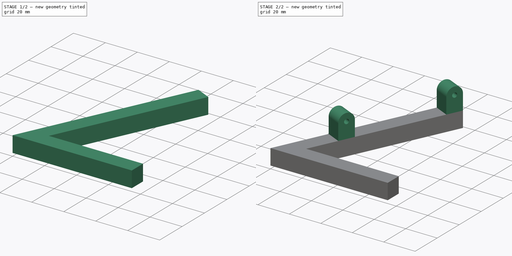
[diagram: build sequence overview — one tinted view per stage of 2, left to right]
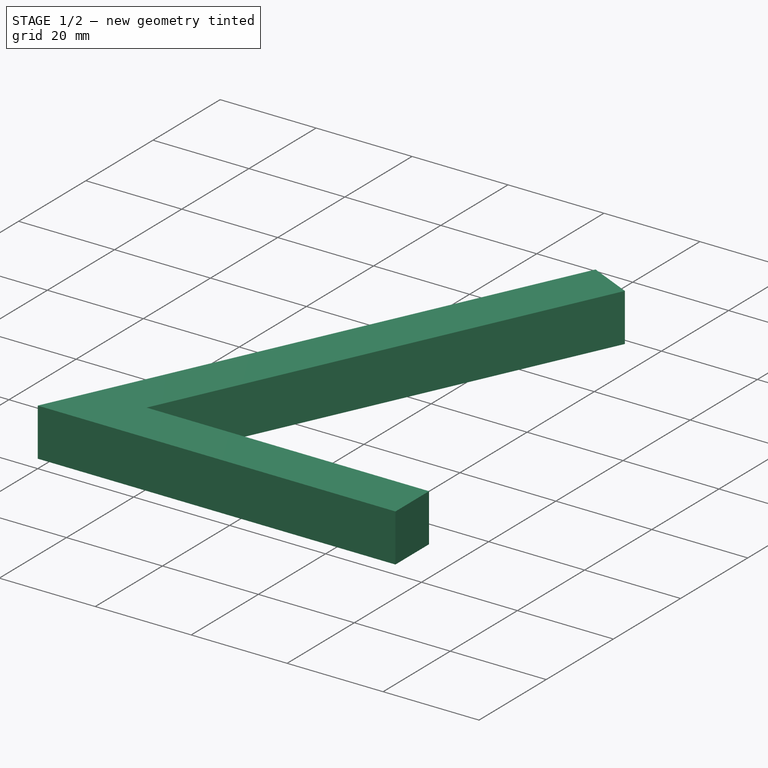
[diagram: stage 1 of 2 — iso view after this stage's code; geometry added in this stage tinted green]
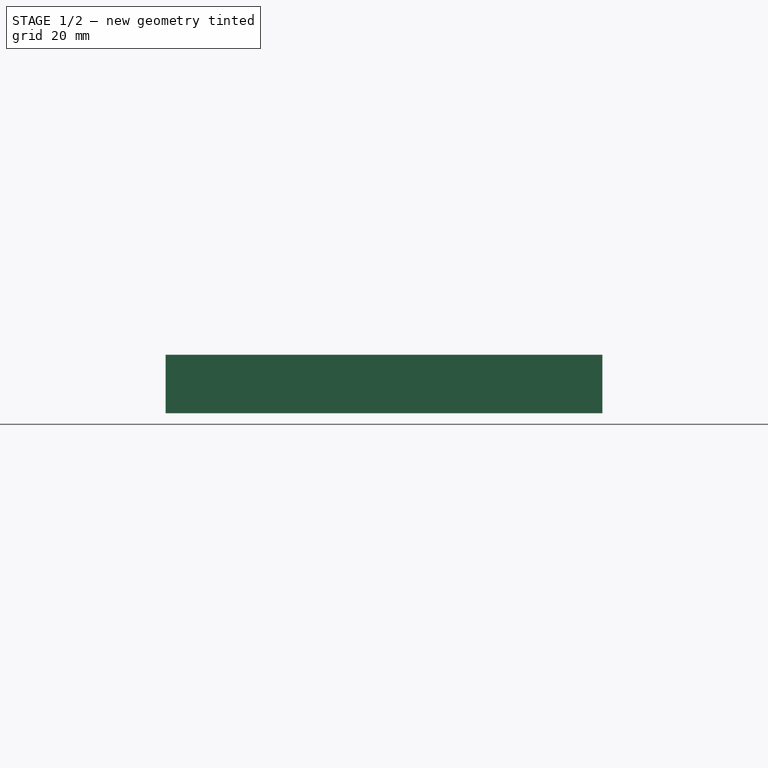
[diagram: stage 1 of 2 — front view after this stage's code; geometry added in this stage tinted green]
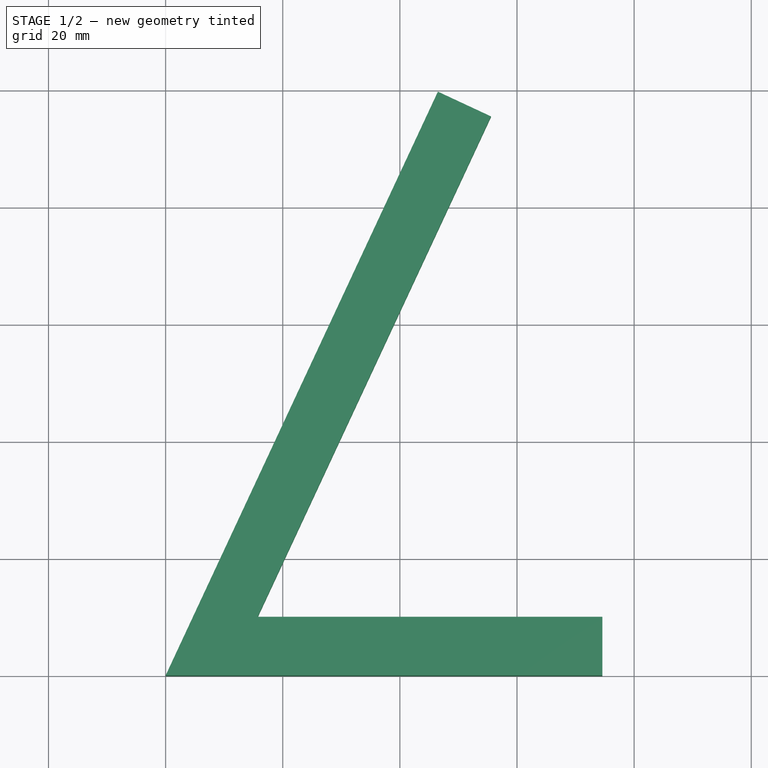
[diagram: stage 1 of 2 — top view after this stage's code; geometry added in this stage tinted green]
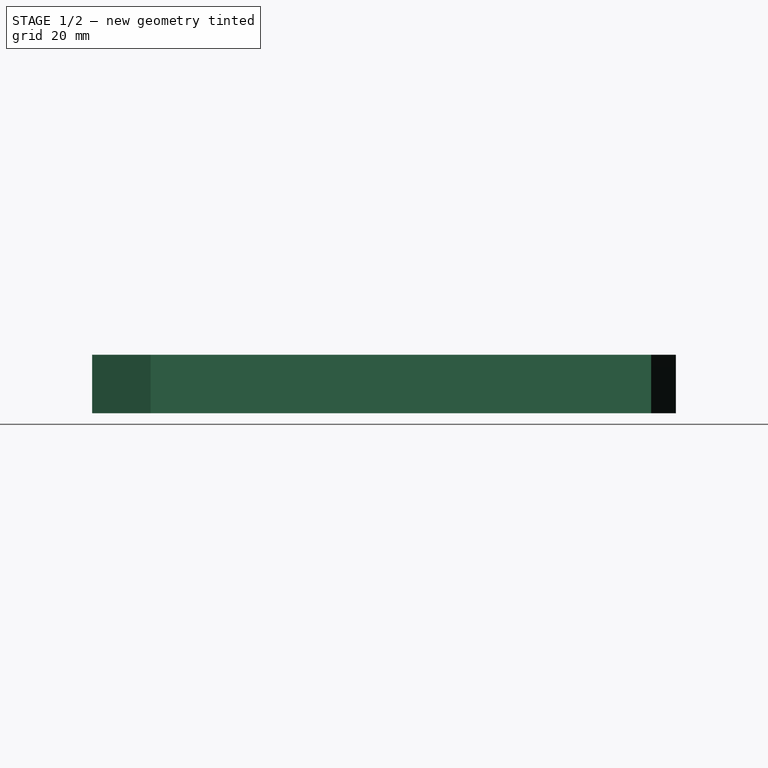
[diagram: stage 1 of 2 — right view after this stage's code; geometry added in this stage tinted green]
FCSTD DOCUMENT  (FreeCAD 0.20R)
Label: 10inch_screen_legs
License: All rights reserved
LicenseURL: http://en.wikipedia.org/wiki/All_rights_reserved
objects: Sketcher::SketchObject×2, PartDesign::Pad×2, PartDesign::Body×1
note: 7 computed .brp shape members not serialized (recipe doc carries the construction recipe); baked Part::Feature solids carry a one-line shape summary decoded from their .brp

FEATURE [Sketcher::SketchObject] Sketch
  FullyConstrained = false
  MapMode = 5
  Support = -> [XY_Plane]
  sketch-geometry (11):
    g0: LineSegment StartX=74.5689 StartY=0 StartZ=0 EndX=0 EndY=0 EndZ=0
    g1: LineSegment StartX=0 StartY=0 StartZ=0 EndX=46.488 EndY=99.6939 EndZ=0
    g2: LineSegment StartX=46.488 StartY=99.6939 StartZ=0 EndX=55.5511 EndY=95.4677 EndZ=0
    g3: LineSegment StartX=55.5511 StartY=95.4677 StartZ=0 EndX=15.6969 EndY=10 EndZ=0
    g4: LineSegment StartX=15.6969 StartY=10 StartZ=0 EndX=74.5689 EndY=10 EndZ=0
    g5: LineSegment StartX=74.5689 StartY=10 StartZ=0 EndX=74.5689 EndY=0 EndZ=0
    g6: LineSegment StartX=-12.562 StartY=55.5098 StartZ=0 EndX=14.9082 EndY=114.42 EndZ=0
    g7: LineSegment StartX=0 StartY=0 StartZ=0 EndX=-31.5798 EndY=14.7259 EndZ=0
    g8: LineSegment StartX=-31.5798 StartY=14.7259 StartZ=0 EndX=-12.562 EndY=55.5098 EndZ=0
    g9: LineSegment StartX=55.5511 StartY=95.4677 StartZ=0 EndX=74.5689 EndY=136.252 EndZ=0
    g10: LineSegment StartX=74.5689 StartY=136.252 StartZ=0 EndX=74.5689 EndY=10 EndZ=0
  constraints (30):
    c: PointOnObject(g0,g-1)
    c: Coincident(g0,g-1)
    c: Coincident(g1,g0)
    c: Coincident(g2,g1)
    c: Coincident(g3,g2)
    c: Coincident(g4,g3)
    c: Horizontal(g4)
    c: Coincident(g5,g4)
    c: Coincident(g5,g0)
    c: Vertical(g5)
    c: Perpendicular(g2,g1)
    c: Parallel(g1,g3)
    c: Equal(g2,g5)
    c: Angle(g4,g3) = 1.13446
    c: Distance(g5) = 10
    c: Distance(g1) = 110
    c: Distance(g6) = 65
    c: Parallel(g1,g6)
    c: PointOnObject(g6,g2)
    c: Coincident(g7,g0)
    c: Perpendicular(g1,g7)
    c: Coincident(g8,g7)
    c: Coincident(g8,g6)
    c: Perpendicular(g7,g8)
    c: Coincident(g9,g2)
    c: Parallel(g9,g3)
    c: Equal(g9,g8)
    c: Coincident(g10,g9)
    c: Coincident(g10,g4)
    c: Vertical(g10)
FEATURE [PartDesign::Pad] Pad
  Direction = (0,0,1)
  Length = 10
  Length2 = 10
  Profile = -> Sketch
  ReferenceAxis = -> Sketch [N_Axis]
  Type = 0
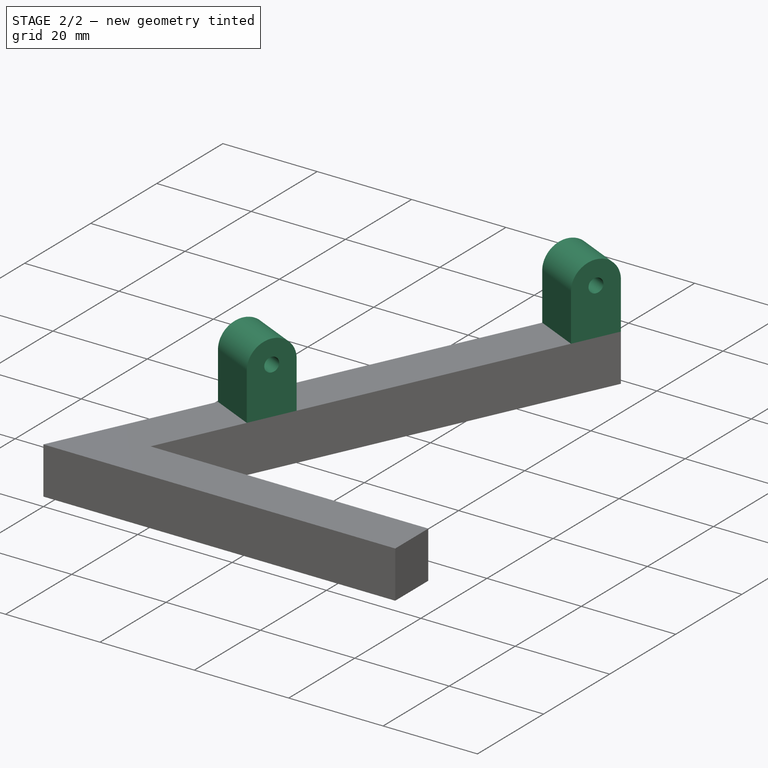
[diagram: stage 2 of 2 — iso view after this stage's code; geometry added in this stage tinted green]
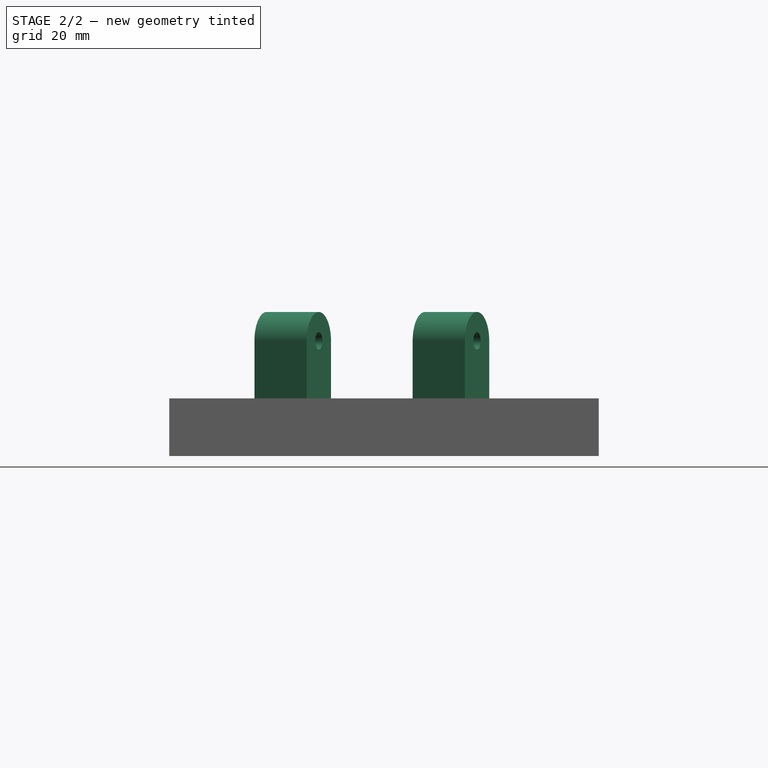
[diagram: stage 2 of 2 — front view after this stage's code; geometry added in this stage tinted green]
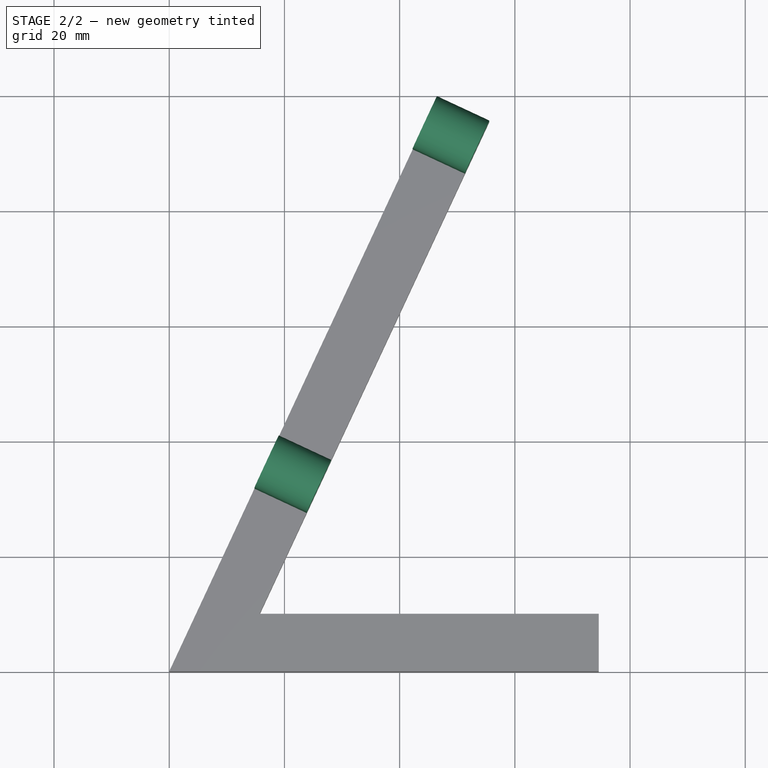
[diagram: stage 2 of 2 — top view after this stage's code; geometry added in this stage tinted green]
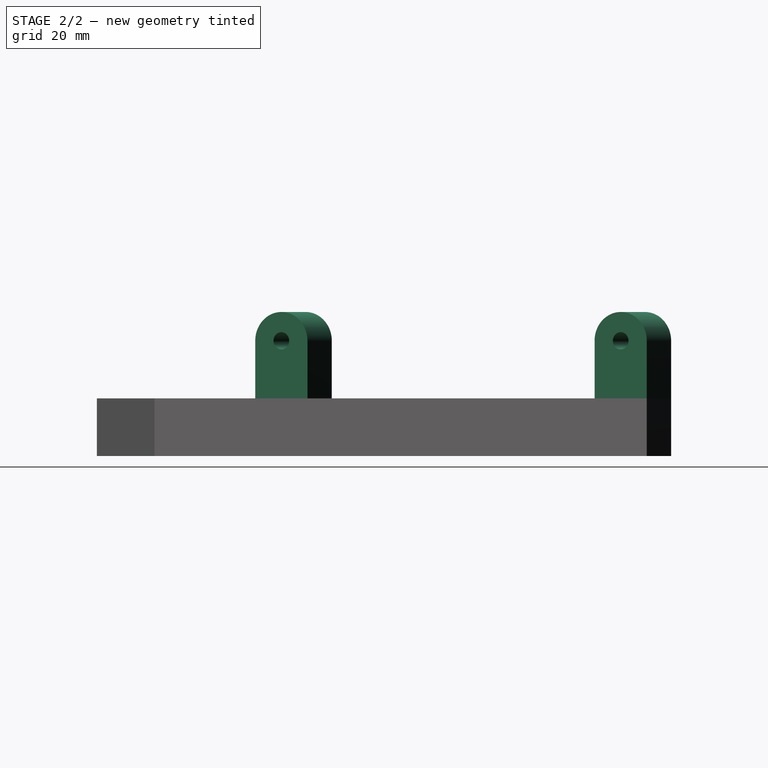
[diagram: stage 2 of 2 — right view after this stage's code; geometry added in this stage tinted green]
FEATURE [Sketcher::SketchObject] Sketch001
  ExternalGeometry = -> [Pad]
  FullyConstrained = true
  MapMode = 5
  Placement = pos=(9.06308,-4.22618,0) rot=(0.742942,0.473306,0.473306;1.86366rad)
  Support = -> [Pad]
  sketch-geometry (14):
    g0: LineSegment StartX=110 StartY=10 StartZ=0 EndX=100 EndY=10 EndZ=0
    g1: LineSegment StartX=110 StartY=10 StartZ=0 EndX=110 EndY=20 EndZ=0
    g2: LineSegment StartX=100 StartY=10 StartZ=0 EndX=100 EndY=20 EndZ=0
    g3: LineSegment StartX=100 StartY=20 StartZ=0 EndX=105 EndY=20 EndZ=0
    g4: LineSegment StartX=110 StartY=20 StartZ=0 EndX=105 EndY=20 EndZ=0
    g5: ArcOfCircle CenterX=105 CenterY=20 CenterZ=0 NormalX=0 NormalY=0 NormalZ=1 AngleXU=0 Radius=5 StartAngle=-9e-16 EndAngle=3.14159
    g6: LineSegment StartX=45 StartY=10 StartZ=0 EndX=45 EndY=20 EndZ=0
    g7: LineSegment StartX=45 StartY=10 StartZ=0 EndX=35 EndY=10 EndZ=0
    g8: LineSegment StartX=35 StartY=10 StartZ=0 EndX=35 EndY=20 EndZ=0
    g9: ArcOfCircle CenterX=40 CenterY=20 CenterZ=0 NormalX=0 NormalY=0 NormalZ=1 AngleXU=0 Radius=5 StartAngle=3e-16 EndAngle=3.14159
    g10: LineSegment StartX=35 StartY=20 StartZ=0 EndX=40 EndY=20 EndZ=0
    g11: LineSegment StartX=45 StartY=20 StartZ=0 EndX=40 EndY=20 EndZ=0
    g12: Circle CenterX=105 CenterY=20 CenterZ=0 NormalX=0 NormalY=0 NormalZ=1 AngleXU=0 Radius=1.5
    g13: Circle CenterX=40 CenterY=20 CenterZ=0 NormalX=0 NormalY=0 NormalZ=1 AngleXU=0 Radius=1.5
  constraints (37):
    c: PointOnObject(g0,g-3)
    c: Coincident(g0,g-4)
    c: Distance(g0) = 10
    c: Coincident(g1,g0)
    c: Vertical(g1)
    c: Coincident(g2,g0)
    c: Vertical(g2)
    c: Coincident(g3,g2)
    c: Horizontal(g3)
    c: Coincident(g4,g1)
    c: Coincident(g4,g3)
    c: Perpendicular(g1,g4)
    c: Coincident(g5,g3)
    c: Coincident(g5,g2)
    c: Coincident(g5,g1)
    c: Equal(g2,g0)
    c: Equal(g0,g7) = 10
    c: Coincident(g6,g7)
    c: Vertical(g6)
    c: Coincident(g8,g7)
    c: Vertical(g8)
    c: Coincident(g10,g8)
    c: Horizontal(g10)
    c: Coincident(g11,g6)
    c: Coincident(g11,g10)
    c: Perpendicular(g6,g11)
    c: Coincident(g9,g10)
    c: Coincident(g9,g8)
    c: Coincident(g9,g6)
    c: Equal(g8,g7)
    c: PointOnObject(g6,g-3)
    c: PointOnObject(g7,g-3)
    c: Distance(g9,g5) = 65
    c: Coincident(g12,g5)
    c: Diameter(g12) = 3
    c: Coincident(g13,g9)
    c: Equal(g13,g12)
FEATURE [PartDesign::Pad] Pad001
  BaseFeature = -> Pad
  Direction = (0.906308,-0.422618,0)
  Length = 10
  Length2 = 10
  Profile = -> Sketch001
  ReferenceAxis = -> Sketch001 [N_Axis]
  Reversed = true
  Type = 0
FEATURE [PartDesign::Body] Body
  Group = -> [Sketch,Pad,Sketch001,Pad001]
  Origin = -> Origin
  Tip = -> Pad001
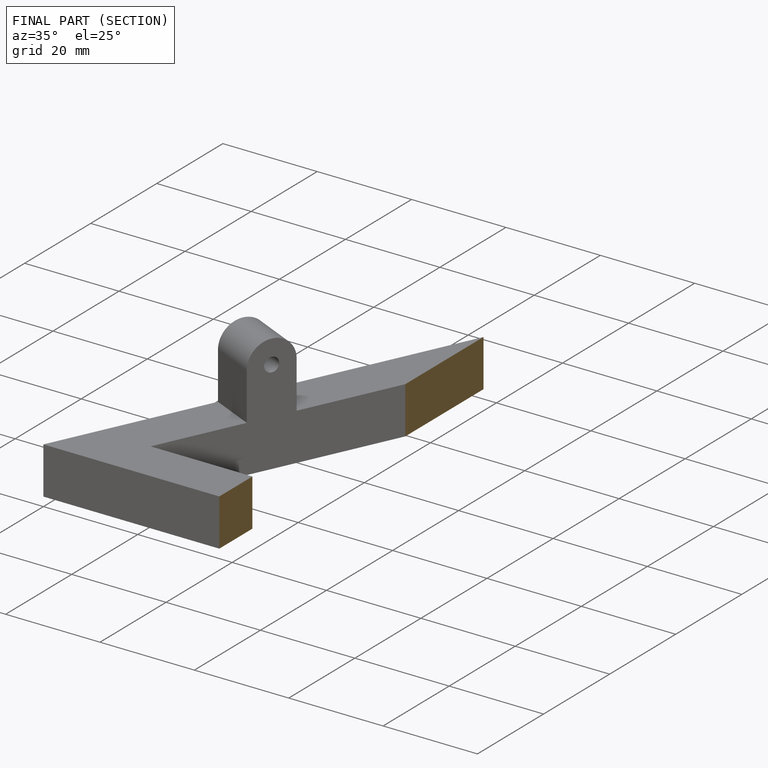
[diagram: finished part — half-section view (interior)]
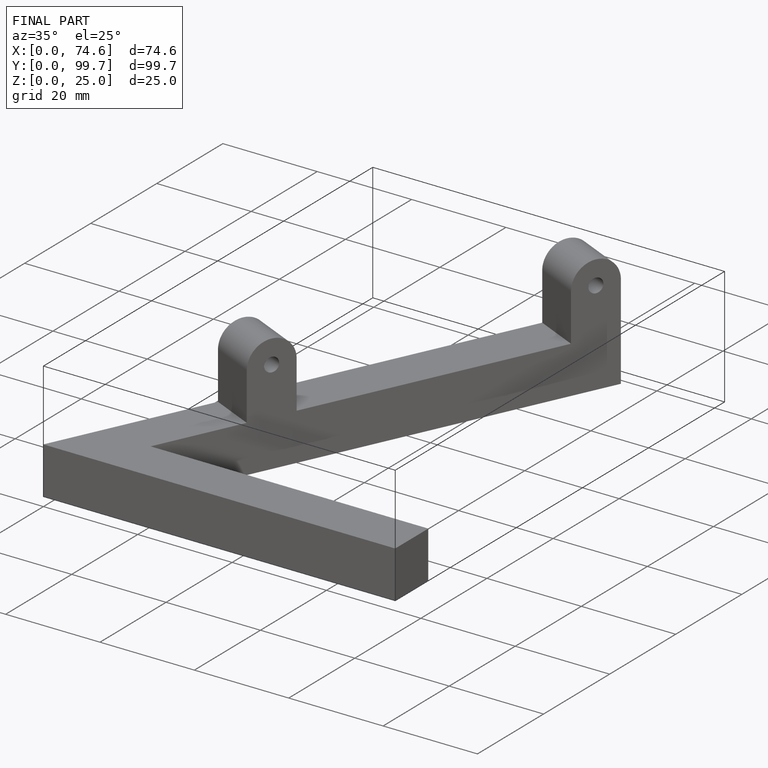
[diagram: finished part — iso view with bounding-box wireframe]
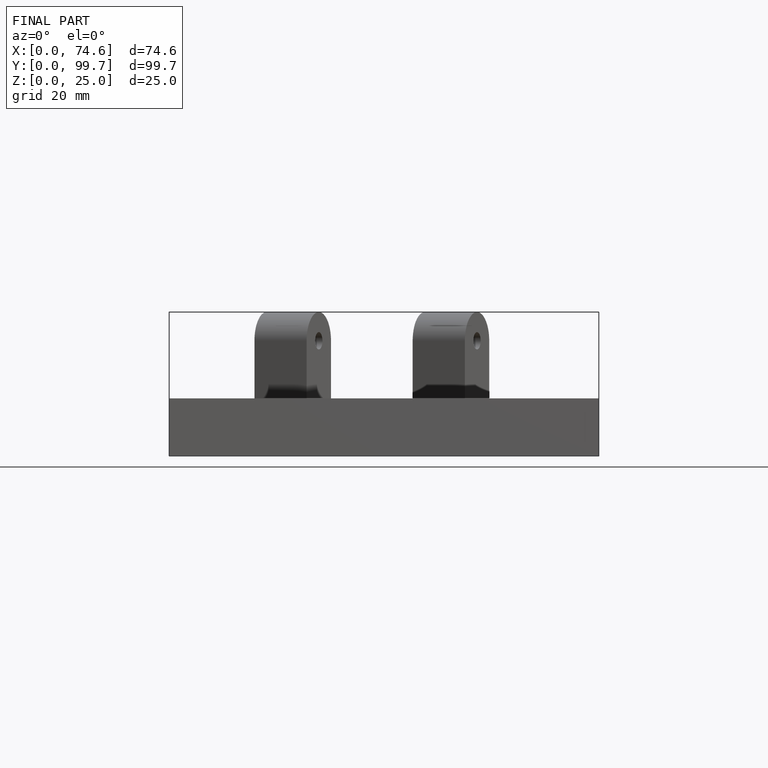
[diagram: finished part — front view with bounding-box wireframe]
